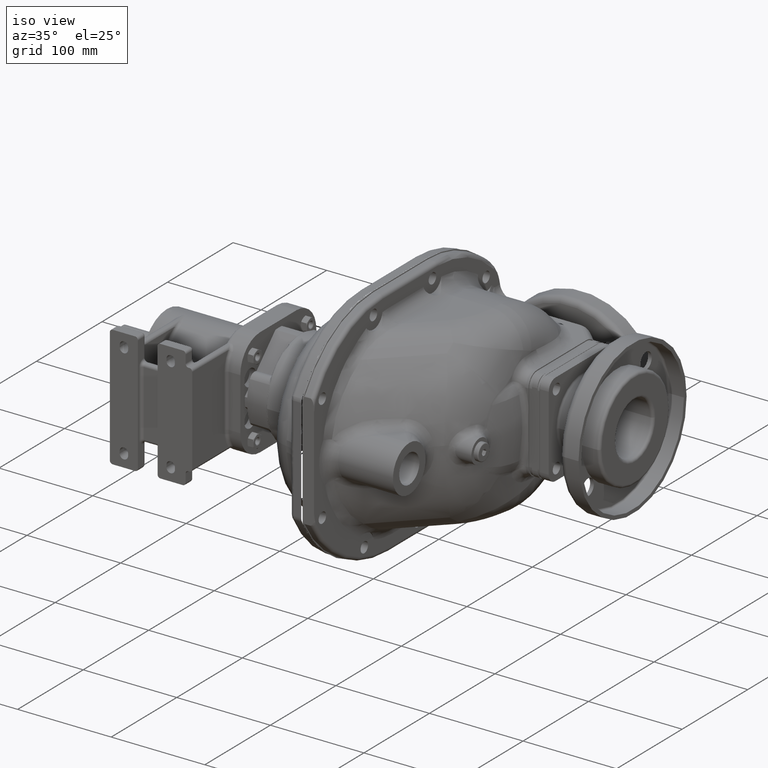
[diagram: clean part render]
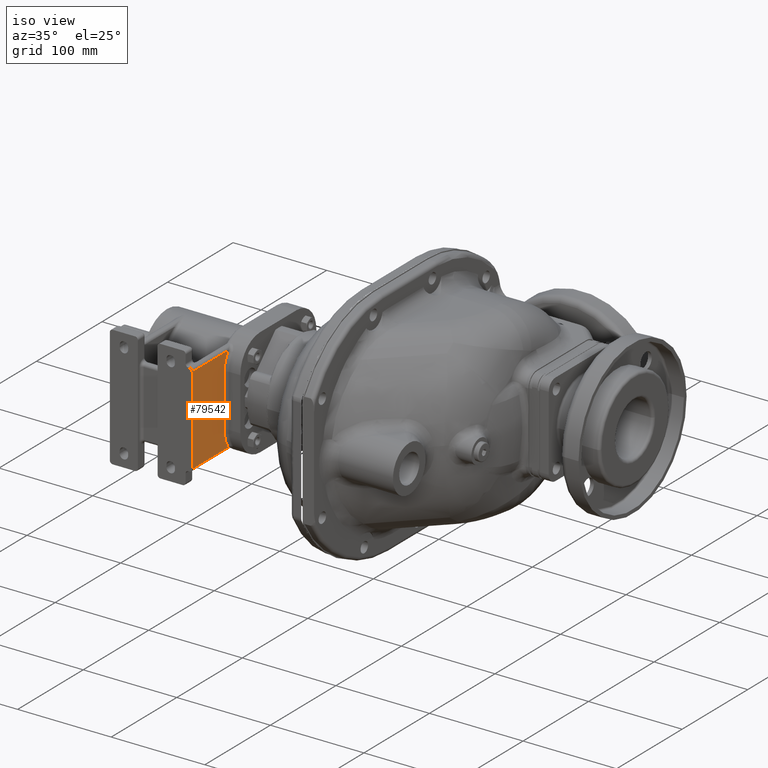
[diagram: same view with one face highlighted and labeled with its STEP entity id]
A machine part, iso view. The second image highlights one B-rep face of the part: STEP entity #79542.
In plain terms, the highlighted planar face has unit normal (-1, 0, 0).
Its self-contained STEP definition (entity closure, byte-faithful):
#30640=DIRECTION('',(0.E0,0.E0,1.E0));
#30641=VECTOR('',#30640,9.4E1);
#30642=CARTESIAN_POINT('',(-1.375E2,2.E1,-4.7E1));
#30643=LINE('',#30642,#30641);
#30644=DIRECTION('',(0.E0,-1.E0,0.E0));
#30645=VECTOR('',#30644,5.501852487354E1);
#30646=CARTESIAN_POINT('',(-1.375E2,7.501852487354E1,4.7E1));
#30647=LINE('',#30646,#30645);
#30648=CARTESIAN_POINT('',(-1.375E2,1.02E2,2.8E1));
#30649=DIRECTION('',(-1.E0,0.E0,0.E0));
#30650=DIRECTION('',(0.E0,-1.E0,0.E0));
#30651=AXIS2_PLACEMENT_3D('',#30648,#30649,#30650);
#30653=DIRECTION('',(0.E0,0.E0,1.E0));
#30654=VECTOR('',#30653,5.6E1);
#30655=CARTESIAN_POINT('',(-1.375E2,6.9E1,-2.8E1));
#30656=LINE('',#30655,#30654);
#30657=CARTESIAN_POINT('',(-1.375E2,1.02E2,-2.8E1));
#30658=DIRECTION('',(-1.E0,0.E0,0.E0));
#30659=DIRECTION('',(0.E0,-8.176204583777E-1,-5.757575757576E-1));
#30660=AXIS2_PLACEMENT_3D('',#30657,#30658,#30659);
#30662=DIRECTION('',(0.E0,1.E0,0.E0));
#30663=VECTOR('',#30662,5.501852487354E1);
#30664=CARTESIAN_POINT('',(-1.375E2,2.E1,-4.7E1));
#30665=LINE('',#30664,#30663);
#30671=CARTESIAN_POINT('',(-1.375E2,7.501852487354E1,4.7E1));
#30800=CARTESIAN_POINT('',(-1.375E2,7.501852487354E1,-4.7E1));
#44031=VERTEX_POINT('',#30671);
#44033=VERTEX_POINT('',#30800);
#44146=CARTESIAN_POINT('',(-1.375E2,2.E1,-4.7E1));
#44147=CARTESIAN_POINT('',(-1.375E2,2.E1,4.7E1));
#44148=VERTEX_POINT('',#44146);
#44149=VERTEX_POINT('',#44147);
#44168=CARTESIAN_POINT('',(-1.375E2,6.9E1,2.8E1));
#44169=VERTEX_POINT('',#44168);
#44170=CARTESIAN_POINT('',(-1.375E2,6.9E1,-2.8E1));
#44171=VERTEX_POINT('',#44170);
#79526=CARTESIAN_POINT('',(-1.375E2,1.3E2,0.E0));
#79527=DIRECTION('',(-1.E0,0.E0,0.E0));
#79528=DIRECTION('',(0.E0,0.E0,1.E0));
#79529=AXIS2_PLACEMENT_3D('',#79526,#79527,#79528);
#79530=PLANE('',#79529);
#79531=ORIENTED_EDGE('',*,*,#79472,.T.);
#79533=ORIENTED_EDGE('',*,*,#79532,.F.);
#79534=ORIENTED_EDGE('',*,*,#79010,.F.);
#79535=ORIENTED_EDGE('',*,*,#79025,.F.);
#79537=ORIENTED_EDGE('',*,*,#79536,.F.);
#79539=ORIENTED_EDGE('',*,*,#79538,.F.);
#79540=EDGE_LOOP('',(#79531,#79533,#79534,#79535,#79537,#79539));
#79541=FACE_OUTER_BOUND('',#79540,.F.);
#79542=ADVANCED_FACE('',(#79541),#79530,.F.);
#30652=CIRCLE('',#30651,3.3E1);
#30661=CIRCLE('',#30660,3.3E1);
#79010=EDGE_CURVE('',#44169,#44031,#30652,.T.);
#79025=EDGE_CURVE('',#44171,#44169,#30656,.T.);
#79472=EDGE_CURVE('',#44148,#44149,#30643,.T.);
#79532=EDGE_CURVE('',#44031,#44149,#30647,.T.);
#79536=EDGE_CURVE('',#44033,#44171,#30661,.T.);
#79538=EDGE_CURVE('',#44148,#44033,#30665,.T.);